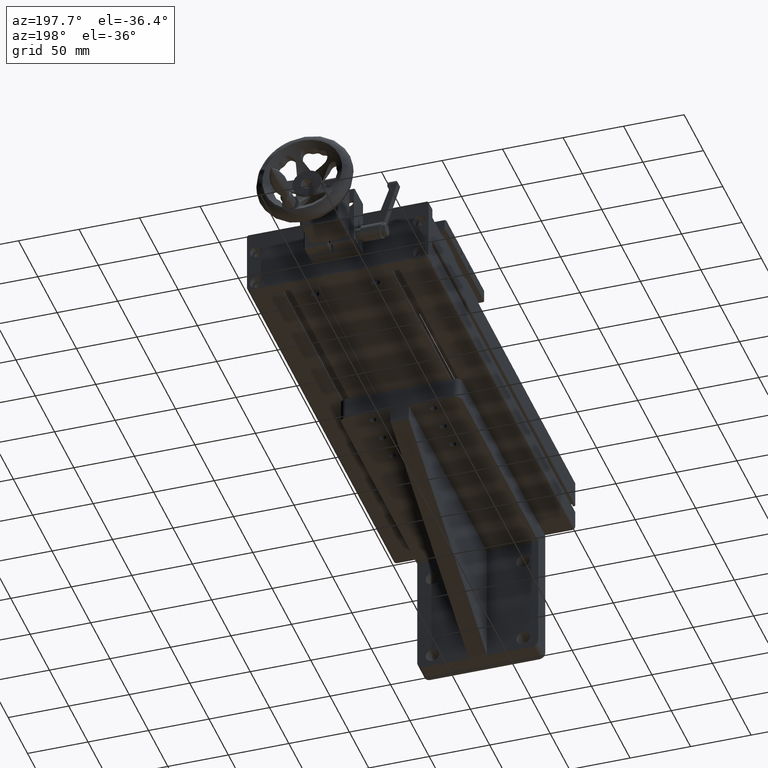
[diagram: clean part render]
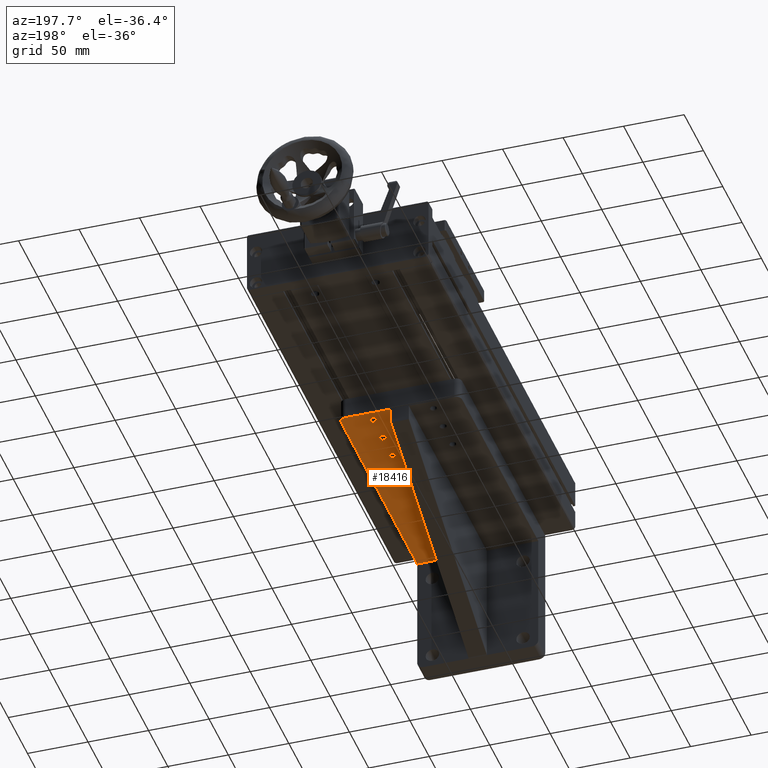
[diagram: same view with one face highlighted and labeled with its STEP entity id]
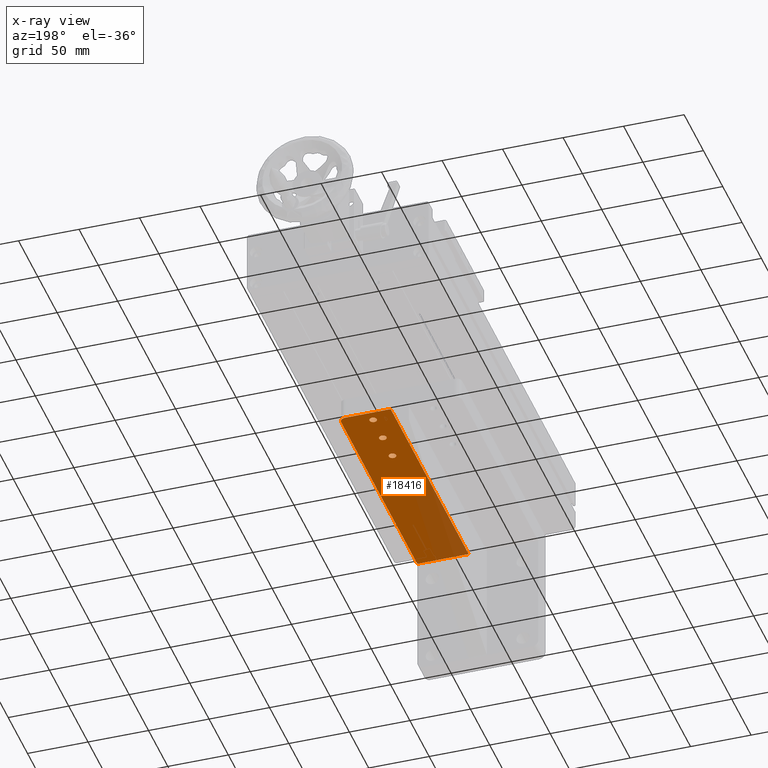
[diagram: x-ray of the same camera — body ghosted, the highlighted face saturated]
A machine part, auxiliary view. The second image highlights one B-rep face of the part: STEP entity #18416.
The next image is the same camera in x-ray: the body ghosted, the highlighted face saturated — about 27% of this face is hidden behind the body in this view.
In plain terms, the highlighted planar face has unit normal (0, 0, 1).
Its self-contained STEP definition (entity closure, byte-faithful):
#59 = CIRCLE ( 'NONE', #788, 3.000000000065484951 ) ;
#281 = VERTEX_POINT ( 'NONE', #8489 ) ;
#788 = AXIS2_PLACEMENT_3D ( 'NONE', #17071, #31576, #2667 ) ;
#1242 = EDGE_LOOP ( 'NONE', ( #29244, #5505, #14781, #19068, #37122 ) ) ;
#1362 = AXIS2_PLACEMENT_3D ( 'NONE', #42938, #42702, #27464 ) ;
#2295 = CARTESIAN_POINT ( 'NONE',  ( 4.920251590585795753, 70.78653025440199542, 41.99999999997059774 ) ) ;
#2484 = CIRCLE ( 'NONE', #15109, 5.000000000000000888 ) ;
#2634 = VERTEX_POINT ( 'NONE', #9457 ) ;
#2650 = CARTESIAN_POINT ( 'NONE',  ( 1.920251590520314577, 70.78653025440199542, 41.99999999997063327 ) ) ;
#2667 = DIRECTION ( 'NONE',  ( -1.000000000000000000, 0.000000000000000000, 1.156482317292627269E-14 ) ) ;
#2971 = ORIENTED_EDGE ( 'NONE', *, *, #24434, .F. ) ;
#4459 = DIRECTION ( 'NONE',  ( -1.047444401652940007E-14, 0.000000000000000000, -1.000000000000000000 ) ) ;
#5505 = ORIENTED_EDGE ( 'NONE', *, *, #43380, .F. ) ;
#5792 = FACE_BOUND ( 'NONE', #35409, .T. ) ;
#6092 = LINE ( 'NONE', #20307, #32672 ) ;
#6655 = CARTESIAN_POINT ( 'NONE',  ( -73.07974840947967721, -96.71346974559800458, 42.00000000000051870 ) ) ;
#6892 = DIRECTION ( 'NONE',  ( 1.000000000000000000, 0.000000000000000000, -1.047444401652940007E-14 ) ) ;
#7473 = VERTEX_POINT ( 'NONE', #44949 ) ;
#8283 = CIRCLE ( 'NONE', #34392, 3.000000000065484951 ) ;
#8489 = CARTESIAN_POINT ( 'NONE',  ( 4.920251590585795753, 45.78653025440200253, 41.99999999997059774 ) ) ;
#9457 = CARTESIAN_POINT ( 'NONE',  ( 21.92025159052031213, 105.2865302544019954, 41.99999999999952394 ) ) ;
#10243 = DIRECTION ( 'NONE',  ( -1.000000000000000000, 0.000000000000000000, 1.156482317292627269E-14 ) ) ;
#11712 = CARTESIAN_POINT ( 'NONE',  ( 4.920251590585795753, 95.78653025440198121, 41.99999999997059774 ) ) ;
#12990 = ORIENTED_EDGE ( 'NONE', *, *, #41461, .F. ) ;
#13131 = EDGE_CURVE ( 'NONE', #22063, #26193, #6092, .T. ) ;
#13331 = DIRECTION ( 'NONE',  ( -1.000000000000000000, 0.000000000000000000, 1.156482317292627269E-14 ) ) ;
#14219 = VECTOR ( 'NONE', #6892, 1000.000000000000000 ) ;
#14567 = CARTESIAN_POINT ( 'NONE',  ( -1.079748409545173926, 95.78653025440198121, 41.99999999997066169 ) ) ;
#14781 = ORIENTED_EDGE ( 'NONE', *, *, #13131, .F. ) ;
#15109 = AXIS2_PLACEMENT_3D ( 'NONE', #31136, #38206, #42444 ) ;
#15682 = CIRCLE ( 'NONE', #18628, 3.000000000065484951 ) ;
#16744 = FACE_BOUND ( 'NONE', #29975, .T. ) ;
#16895 = LINE ( 'NONE', #6655, #14219 ) ;
#17071 = CARTESIAN_POINT ( 'NONE',  ( 1.920251590520314577, 95.78653025440198121, 41.99999999997063327 ) ) ;
#17258 = CARTESIAN_POINT ( 'NONE',  ( -1.079748409545173926, 70.78653025440199542, 41.99999999997066169 ) ) ;
#18037 = EDGE_CURVE ( 'NONE', #31761, #32800, #59, .T. ) ;
#18180 = CARTESIAN_POINT ( 'NONE',  ( -15.57974840947968431, -96.71346974559800458, 41.99999999999991473 ) ) ;
#18416 = ADVANCED_FACE ( 'NONE', ( #37821, #30083, #16744, #5792 ), #20009, .F. ) ;
#18628 = AXIS2_PLACEMENT_3D ( 'NONE', #42336, #31969, #10243 ) ;
#18666 = AXIS2_PLACEMENT_3D ( 'NONE', #34278, #27247, #41583 ) ;
#18767 = VECTOR ( 'NONE', #33558, 1000.000000000000000 ) ;
#19068 = ORIENTED_EDGE ( 'NONE', *, *, #43020, .T. ) ;
#19268 = CARTESIAN_POINT ( 'NONE',  ( 26.92025159052031569, -114.7134697455980046, 41.99999999999946709 ) ) ;
#19654 = DIRECTION ( 'NONE',  ( 1.000000000000000000, -0.000000000000000000, -1.047444401652940007E-14 ) ) ;
#20009 = PLANE ( 'NONE',  #18666 ) ;
#20307 = CARTESIAN_POINT ( 'NONE',  ( -15.57974840947968431, 105.2865302544019954, 41.99999999999991473 ) ) ;
#21209 = EDGE_CURVE ( 'NONE', #39023, #38670, #15682, .T. ) ;
#21344 = ORIENTED_EDGE ( 'NONE', *, *, #27742, .F. ) ;
#22063 = VERTEX_POINT ( 'NONE', #45400 ) ;
#22163 = AXIS2_PLACEMENT_3D ( 'NONE', #2650, #41917, #13331 ) ;
#22535 = CARTESIAN_POINT ( 'NONE',  ( 26.92025159052032279, -96.71346974559799037, 41.99999999999946709 ) ) ;
#22769 = LINE ( 'NONE', #19268, #18767 ) ;
#22900 = CARTESIAN_POINT ( 'NONE',  ( -73.07974840947967721, 105.2865302544019954, 42.00000000000051870 ) ) ;
#23442 = CARTESIAN_POINT ( 'NONE',  ( 26.92025159052031569, 100.2865302544019812, 41.99999999999946709 ) ) ;
#23583 = LINE ( 'NONE', #22900, #29963 ) ;
#23740 = EDGE_LOOP ( 'NONE', ( #12990, #2971 ) ) ;
#24434 = EDGE_CURVE ( 'NONE', #281, #7473, #8283, .T. ) ;
#24789 = ORIENTED_EDGE ( 'NONE', *, *, #18037, .F. ) ;
#25390 = AXIS2_PLACEMENT_3D ( 'NONE', #42838, #35524, #28469 ) ;
#26193 = VERTEX_POINT ( 'NONE', #18180 ) ;
#27247 = DIRECTION ( 'NONE',  ( 1.047444401652940007E-14, 0.000000000000000000, 1.000000000000000000 ) ) ;
#27464 = DIRECTION ( 'NONE',  ( -1.000000000000000000, 0.000000000000000000, 1.156482317292627269E-14 ) ) ;
#27682 = ORIENTED_EDGE ( 'NONE', *, *, #38027, .F. ) ;
#27742 = EDGE_CURVE ( 'NONE', #38670, #39023, #32658, .T. ) ;
#28469 = DIRECTION ( 'NONE',  ( -1.000000000000000000, 0.000000000000000000, 1.156482317292627269E-14 ) ) ;
#29244 = ORIENTED_EDGE ( 'NONE', *, *, #33291, .T. ) ;
#29870 = DIRECTION ( 'NONE',  ( -1.000000000000000000, 0.000000000000000000, 1.156482317292627269E-14 ) ) ;
#29963 = VECTOR ( 'NONE', #19654, 1000.000000000000000 ) ;
#29975 = EDGE_LOOP ( 'NONE', ( #21344, #42446 ) ) ;
#30083 = FACE_BOUND ( 'NONE', #23740, .T. ) ;
#31136 = CARTESIAN_POINT ( 'NONE',  ( 21.92025159052031213, 100.2865302544019812, 41.99999999999952394 ) ) ;
#31576 = DIRECTION ( 'NONE',  ( -1.047444401652940007E-14, 0.000000000000000000, -1.000000000000000000 ) ) ;
#31761 = VERTEX_POINT ( 'NONE', #11712 ) ;
#31969 = DIRECTION ( 'NONE',  ( -1.047444401652940007E-14, 0.000000000000000000, -1.000000000000000000 ) ) ;
#32558 = EDGE_CURVE ( 'NONE', #39636, #2634, #2484, .T. ) ;
#32658 = CIRCLE ( 'NONE', #22163, 3.000000000065484951 ) ;
#32672 = VECTOR ( 'NONE', #34593, 1000.000000000000000 ) ;
#32800 = VERTEX_POINT ( 'NONE', #14567 ) ;
#33291 = EDGE_CURVE ( 'NONE', #39636, #37077, #22769, .T. ) ;
#33558 = DIRECTION ( 'NONE',  ( -0.000000000000000000, -1.000000000000000000, -0.000000000000000000 ) ) ;
#34278 = CARTESIAN_POINT ( 'NONE',  ( -73.07974840947967721, 105.2865302544019954, 42.00000000000051870 ) ) ;
#34392 = AXIS2_PLACEMENT_3D ( 'NONE', #40449, #4459, #29870 ) ;
#34593 = DIRECTION ( 'NONE',  ( -0.000000000000000000, -1.000000000000000000, -0.000000000000000000 ) ) ;
#35409 = EDGE_LOOP ( 'NONE', ( #27682, #24789 ) ) ;
#35524 = DIRECTION ( 'NONE',  ( -1.047444401652940007E-14, 0.000000000000000000, -1.000000000000000000 ) ) ;
#36645 = CIRCLE ( 'NONE', #25390, 3.000000000065484951 ) ;
#37077 = VERTEX_POINT ( 'NONE', #22535 ) ;
#37122 = ORIENTED_EDGE ( 'NONE', *, *, #32558, .F. ) ;
#37821 = FACE_OUTER_BOUND ( 'NONE', #1242, .T. ) ;
#38027 = EDGE_CURVE ( 'NONE', #32800, #31761, #46226, .T. ) ;
#38206 = DIRECTION ( 'NONE',  ( 1.047444401652940007E-14, 0.000000000000000000, 1.000000000000000000 ) ) ;
#38670 = VERTEX_POINT ( 'NONE', #17258 ) ;
#39023 = VERTEX_POINT ( 'NONE', #2295 ) ;
#39636 = VERTEX_POINT ( 'NONE', #23442 ) ;
#40449 = CARTESIAN_POINT ( 'NONE',  ( 1.920251590520314577, 45.78653025440200253, 41.99999999997063327 ) ) ;
#41461 = EDGE_CURVE ( 'NONE', #7473, #281, #36645, .T. ) ;
#41583 = DIRECTION ( 'NONE',  ( 1.000000000000000000, 0.000000000000000000, -1.047444401652940007E-14 ) ) ;
#41917 = DIRECTION ( 'NONE',  ( -1.047444401652940007E-14, 0.000000000000000000, -1.000000000000000000 ) ) ;
#42336 = CARTESIAN_POINT ( 'NONE',  ( 1.920251590520314577, 70.78653025440199542, 41.99999999997063327 ) ) ;
#42444 = DIRECTION ( 'NONE',  ( 1.000000000000000000, 0.000000000000000000, -1.110223024625156383E-14 ) ) ;
#42446 = ORIENTED_EDGE ( 'NONE', *, *, #21209, .F. ) ;
#42702 = DIRECTION ( 'NONE',  ( -1.047444401652940007E-14, 0.000000000000000000, -1.000000000000000000 ) ) ;
#42838 = CARTESIAN_POINT ( 'NONE',  ( 1.920251590520314577, 45.78653025440200253, 41.99999999997063327 ) ) ;
#42938 = CARTESIAN_POINT ( 'NONE',  ( 1.920251590520314577, 95.78653025440198121, 41.99999999997063327 ) ) ;
#43020 = EDGE_CURVE ( 'NONE', #22063, #2634, #23583, .T. ) ;
#43380 = EDGE_CURVE ( 'NONE', #26193, #37077, #16895, .T. ) ;
#44949 = CARTESIAN_POINT ( 'NONE',  ( -1.079748409545173926, 45.78653025440200253, 41.99999999997066169 ) ) ;
#45400 = CARTESIAN_POINT ( 'NONE',  ( -15.57974840947968431, 105.2865302544019954, 41.99999999999991473 ) ) ;
#46226 = CIRCLE ( 'NONE', #1362, 3.000000000065484951 ) ;